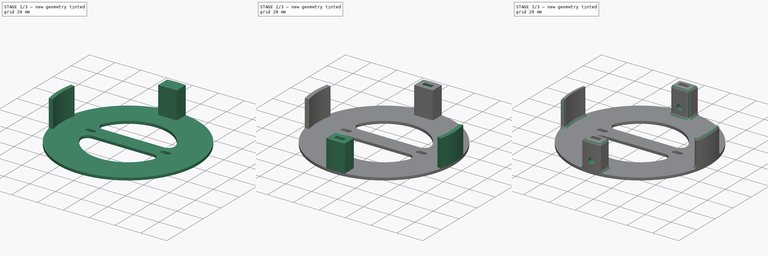
[diagram: build sequence overview — one tinted view per stage of 3, left to right]
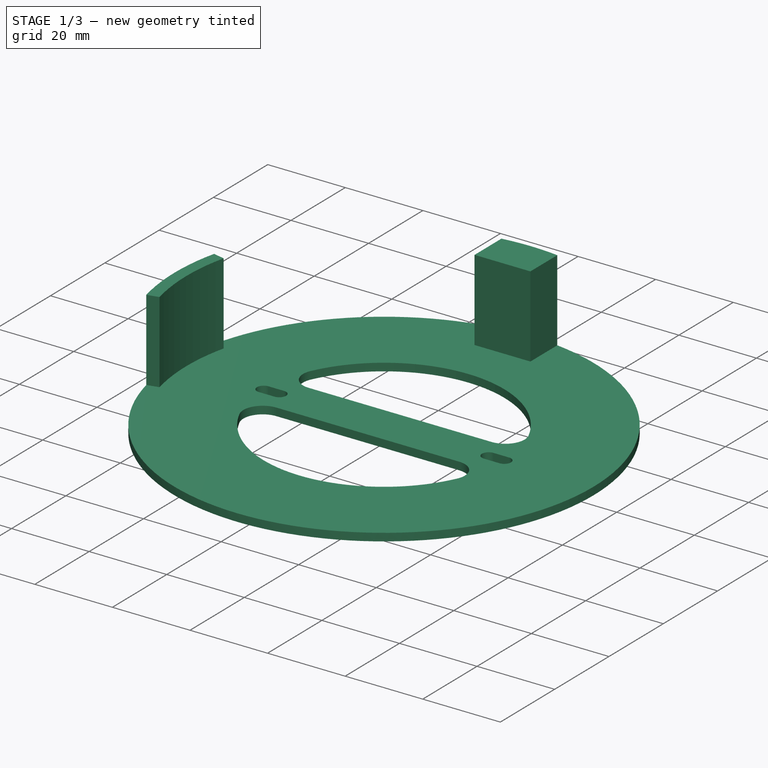
[diagram: stage 1 of 3 — iso view after this stage's code; geometry added in this stage tinted green]
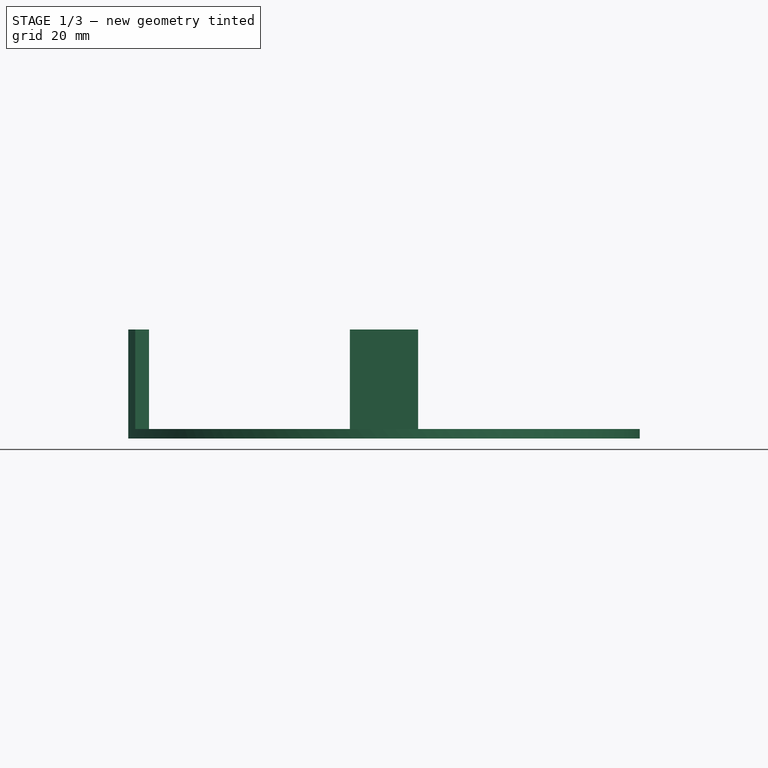
[diagram: stage 1 of 3 — front view after this stage's code; geometry added in this stage tinted green]
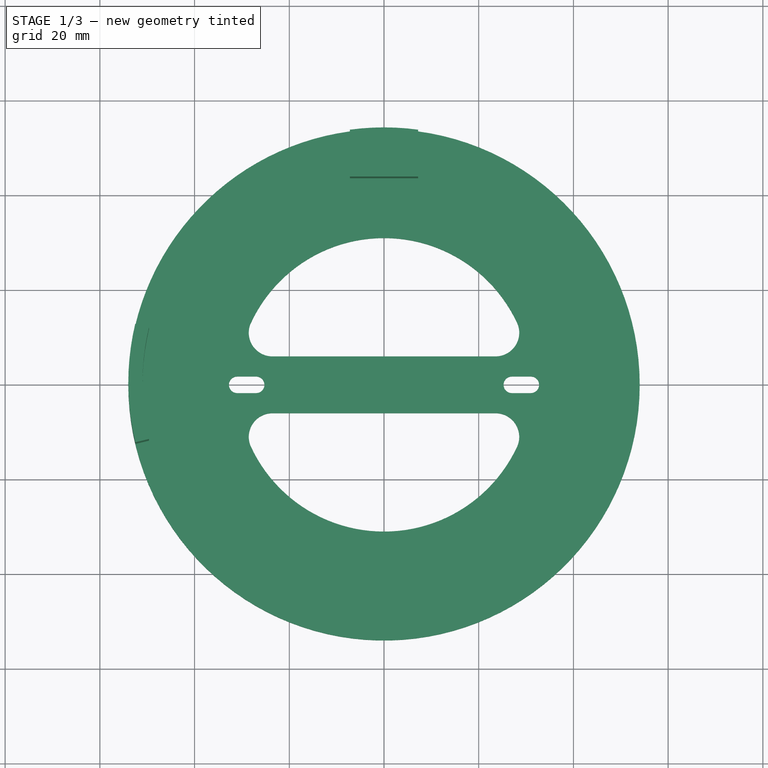
[diagram: stage 1 of 3 — top view after this stage's code; geometry added in this stage tinted green]
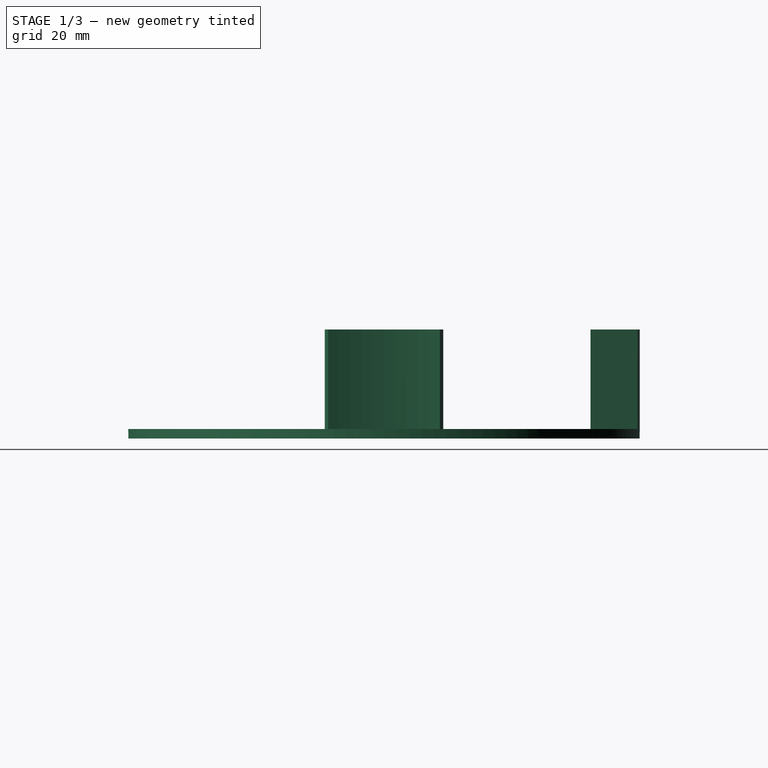
[diagram: stage 1 of 3 — right view after this stage's code; geometry added in this stage tinted green]
FCSTD DOCUMENT  (FreeCAD 0.18.3R)
Label: BathroomLampAdapter
License: All rights reserved
LicenseURL: http://en.wikipedia.org/wiki/All_rights_reserved
objects: Sketcher::SketchObject×5, PartDesign::Pad×2, PartDesign::PolarPattern×2, PartDesign::Pocket×2, Spreadsheet::Sheet×1, PartDesign::Fillet×1, PartDesign::Body×1, App::Part×1
note: 17 computed .brp shape members not serialized (recipe doc carries the construction recipe); baked Part::Feature solids carry a one-line shape summary decoded from their .brp

FEATURE [Spreadsheet::Sheet] Spreadsheet001  label="Screws"
  cells = B2=M3Radius; C2(M3Radius)==1.75mm; B3=M3HeadRadius; C3(M3HeadRadius)==2.9mm; B4=M3HeadHeight; C4(M3HeadHeight)==3mm; B5=M3WasherRadius; C5(M3WasherRadius)==3.6mm; B6=M3WasherHeight; C6(M3WasherHeight)==0.5mm; B7=M3NutRadius; C7(M3NutRadius)==3.3mm; B8=M3NutHeight; C8(M3NutHeight)==2.6mm; B9=M3NylocNutHeight; C9(M3NylocNutHeight)==4.1mm; B10=M3NutDuctWidth; C10(M3NutDuctWidth)==5.6mm; B11=M4Radius; C11(M4Radius)==2.2mm; B12=M4HeadRadius; C12(M4HeadRadius)==3.7mm; B13=M4HeadHeight; C13(M4HeadHeight)==4mm; B14=M4WasherRadius; C14(M4WasherRadius)==4.65mm; B15=M4NutRadius; C15(M4NutRadius)==4.1mm; B16=M4NutDuctWidth; C16(M4NutDuctWidth)==7.2mm; B17=M4NutHeight; C17(M4NutHeight)==3.3mm; B18=M5Radius; C18(M5Radius)==2.66mm; B19=M5HeadRadius; C19(M5HeadRadius)==4.5mm; B20=M5HeadHeight; C20(M5HeadHeight)==5mm; B21=M5NutRadius; C21(M5NutRadius)==4.75mm; B22=M5NutHeight; C22(M5NutHeight)==4mm; B24=M6Radius; C24(M6Radius)==3.15mm; B25=M6HeadRadius; C25(M6HeadRadius)==5.5mm; B32=
FEATURE [Sketcher::SketchObject] Sketch003  label="Template"
  MapMode = 5
  Support = -> [XY_Plane001]
  expr: Constraints[67] = Constraints.Ro - 3mm
  expr: Constraints[64] = Screws.M4NutDuctWidth * 2
  expr: Constraints[59] = Screws.M4NutHeight * 3
  expr: Constraints[58] = Screws.M4NutHeight
  expr: Constraints[57] = Screws.M4NutDuctWidth
  expr: Constraints[17] = Screws.M3Radius
  sketch-geometry (30):
    g0: ArcOfCircle CenterX=-27 CenterY=0 CenterZ=0 NormalX=0 NormalY=0 NormalZ=1 AngleXU=0 Radius=1.75 StartAngle=4.71239 EndAngle=7.85398
    g1: ArcOfCircle CenterX=-31 CenterY=0 CenterZ=0 NormalX=0 NormalY=0 NormalZ=1 AngleXU=0 Radius=1.75 StartAngle=1.5708 EndAngle=4.71239
    g2: LineSegment StartX=-27 StartY=1.75 StartZ=0 EndX=-31 EndY=1.75 EndZ=0
    g3: LineSegment StartX=-27 StartY=-1.75 StartZ=0 EndX=-31 EndY=-1.75 EndZ=0
    g4: ArcOfCircle CenterX=27 CenterY=0 CenterZ=0 NormalX=0 NormalY=0 NormalZ=1 AngleXU=0 Radius=1.75 StartAngle=1.5708 EndAngle=4.71239
    g5: ArcOfCircle CenterX=31 CenterY=-1e-16 CenterZ=0 NormalX=0 NormalY=0 NormalZ=1 AngleXU=0 Radius=1.75 StartAngle=4.71239 EndAngle=7.85398
    g6: LineSegment StartX=27 StartY=-1.75 StartZ=0 EndX=31 EndY=-1.75 EndZ=0
    g7: LineSegment StartX=27 StartY=1.75 StartZ=0 EndX=31 EndY=1.75 EndZ=0
    g8: GeomPoint X=-29 Y=0 Z=0
    g9: GeomPoint X=29 Y=0 Z=0
    g10: Circle CenterX=0 CenterY=0 CenterZ=0 NormalX=0 NormalY=0 NormalZ=1 AngleXU=0 Radius=54
    g11: ArcOfCircle CenterX=0 CenterY=0 CenterZ=0 NormalX=0 NormalY=0 NormalZ=1 AngleXU=0 Radius=31 StartAngle=0.436838 EndAngle=2.70475
    g12: ArcOfCircle CenterX=0 CenterY=0 CenterZ=0 NormalX=0 NormalY=0 NormalZ=1 AngleXU=0 Radius=31 StartAngle=3.57843 EndAngle=5.84635
    g13: LineSegment StartX=-23.5584 StartY=-6 StartZ=0 EndX=23.5584 EndY=-6 EndZ=0
    g14: LineSegment StartX=-23.5584 StartY=6 StartZ=0 EndX=23.5584 EndY=6 EndZ=0
    g15: ArcOfCircle CenterX=-23.5584 CenterY=11 CenterZ=0 NormalX=0 NormalY=0 NormalZ=1 AngleXU=0 Radius=5 StartAngle=2.70475 EndAngle=4.71239
    g16: ArcOfCircle CenterX=23.5584 CenterY=11 CenterZ=0 NormalX=0 NormalY=0 NormalZ=1 AngleXU=0 Radius=5 StartAngle=4.71239 EndAngle=6.72002
    g17: ArcOfCircle CenterX=-23.5584 CenterY=-11 CenterZ=0 NormalX=0 NormalY=0 NormalZ=1 AngleXU=0 Radius=5 StartAngle=1.5708 EndAngle=3.57843
    g18: ArcOfCircle CenterX=23.5584 CenterY=-11 CenterZ=0 NormalX=0 NormalY=0 NormalZ=1 AngleXU=0 Radius=5 StartAngle=5.84635 EndAngle=7.85398
    g19: LineSegment StartX=7.2 StartY=53.5178 StartZ=0 EndX=7.2 EndY=43.6178 EndZ=0
    g20: LineSegment StartX=7.2 StartY=43.6178 StartZ=0 EndX=-7.2 EndY=43.6178 EndZ=0
    g21: LineSegment StartX=-7.2 StartY=43.6178 StartZ=0 EndX=-7.2 EndY=53.5178 EndZ=0
    g22: LineSegment StartX=-3.6 StartY=50.2178 StartZ=0 EndX=3.6 EndY=50.2178 EndZ=0
    g23: LineSegment StartX=3.6 StartY=50.2178 StartZ=0 EndX=3.6 EndY=46.9178 EndZ=0
    g24: LineSegment StartX=3.6 StartY=46.9178 StartZ=0 EndX=-3.6 EndY=46.9178 EndZ=0
    g25: LineSegment StartX=-3.6 StartY=46.9178 StartZ=0 EndX=-3.6 EndY=50.2178 EndZ=0
    g26: LineSegment [constr] StartX=-3.6 StartY=46.9178 StartZ=0 EndX=-3.6 EndY=43.6178 EndZ=0
    g27: ArcOfCircle CenterX=0 CenterY=0 CenterZ=0 NormalX=0 NormalY=0 NormalZ=1 AngleXU=0 Radius=51 StartAngle=2.90799 EndAngle=3.37519
    g28: LineSegment StartX=-49.6148 StartY=11.8056 StartZ=0 EndX=-52.5333 EndY=12.5 EndZ=0
    g29: LineSegment StartX=-49.6148 StartY=-11.8056 StartZ=0 EndX=-52.5333 EndY=-12.5 EndZ=0
  constraints (76):
    c: Tangent(g0,g3) = 1.5708
    c: Tangent(g0,g2) = -1.5708
    c: Tangent(g2,g1) = -1.5708
    c: Tangent(g3,g1) = 1.5708
    c: Horizontal(g2)
    c: Equal(g0,g1)
    c: PointOnObject(g0,g-1)
    c: Tangent(g4,g7) = 1.5708
    c: Tangent(g4,g6) = -1.5708
    c: Tangent(g6,g5) = -1.5708
    c: Tangent(g7,g5) = 1.5708
    c: Horizontal(g6)
    c: Equal(g4,g5)
    c: Symmetric(g0,g1,g8)
    c: Symmetric(g5,g4,g9)
    c: Equal(g1,g5)
    c: Equal(g3,g6)
    c: Radius(g0) = 1.75
    c: DistanceX(g8,g9) = 58
    c: Symmetric(g8,g9,g-1)
    c: DistanceX(g3,g3) = 4
    c: Coincident(g10,g-1)
    c: Radius(g10) = 54  'Ro'
    c: Coincident(g11,g10)
    c: Coincident(g12,g10)
    c: Horizontal(g13)
    c: Equal(g11,g12)
    c: Horizontal(g14)
    c: PointOnObject(g1,g11)
    c: Tangent(g11,g16) = -1.5708
    c: Tangent(g14,g16) = -1.5708
    c: Tangent(g14,g15) = -1.5708
    c: Tangent(g11,g15) = -1.5708
    c: Equal(g15,g16)
    c: Equal(g13,g14)
    c: Equal(g17,g18)
    c: Equal(g18,g16)
    c: Tangent(g13,g17) = 1.5708
    c: Tangent(g12,g17) = -1.5708
    c: Tangent(g13,g18) = 1.5708
    c: Tangent(g12,g18) = -1.5708
    c: DistanceY(g13,g14) = 12
    c: Radius(g15) = 5
    c: Coincident(g19,g20)
    c: Coincident(g20,g21)
    c: Horizontal(g20)
    c: Vertical(g19)
    c: Vertical(g21)
    c: Symmetric(g19,g21,g-2)
    c: Coincident(g22,g23)
    c: Coincident(g23,g24)
    c: Coincident(g24,g25)
    c: Coincident(g25,g22)
    c: Horizontal(g24)
    c: Vertical(g23)
    c: Vertical(g25)
    c: Symmetric(g22,g22,g-2)
    c: DistanceX(g22,g22) = 7.2
    c: DistanceY(g23,g23) = 3.3
    c: DistanceY(g21,g21) = 9.9
    c: Coincident(g26,g24)
    c: PointOnObject(g26,g20)
    c: Vertical(g26)
    c: Equal(g26,g25)
    c: DistanceX(g20,g20) = 14.4
    c: PointOnObject(g21,g10)
    c: Coincident(g27,g10)
    c: Radius(g27) = 51
    c: Coincident(g28,g27)
    c: PointOnObject(g28,g10)
    c: Coincident(g29,g27)
    c: PointOnObject(g29,g10)
    c: PointOnObject(g10,g29)
    c: PointOnObject(g10,g28)
    c: Symmetric(g27,g27,g-1)
    c: DistanceY(g29,g28) = 25
FEATURE [Sketcher::SketchObject] Sketch
  ExternalGeometry = -> [Sketch003]
  MapMode = 5
  Support = -> [XY_Plane001]
  sketch-geometry (17):
    g0: Circle CenterX=1.245e-13 CenterY=0 CenterZ=0 NormalX=0 NormalY=0 NormalZ=1 AngleXU=0 Radius=54
    g1: ArcOfCircle CenterX=1.245e-13 CenterY=0 CenterZ=0 NormalX=0 NormalY=0 NormalZ=1 AngleXU=0 Radius=31 StartAngle=0.436838 EndAngle=2.70475
    g2: ArcOfCircle CenterX=1.245e-13 CenterY=0 CenterZ=0 NormalX=0 NormalY=0 NormalZ=1 AngleXU=0 Radius=31 StartAngle=3.57843 EndAngle=5.84635
    g3: ArcOfCircle CenterX=-23.5584 CenterY=11 CenterZ=0 NormalX=0 NormalY=0 NormalZ=1 AngleXU=0 Radius=5 StartAngle=2.70475 EndAngle=4.71239
    g4: ArcOfCircle CenterX=23.5584 CenterY=11 CenterZ=0 NormalX=0 NormalY=0 NormalZ=1 AngleXU=0 Radius=5 StartAngle=4.71239 EndAngle=6.72002
    g5: ArcOfCircle CenterX=23.5584 CenterY=-11 CenterZ=0 NormalX=0 NormalY=0 NormalZ=1 AngleXU=0 Radius=5 StartAngle=5.84635 EndAngle=7.85398
    g6: ArcOfCircle CenterX=-23.5584 CenterY=-11 CenterZ=0 NormalX=0 NormalY=0 NormalZ=1 AngleXU=0 Radius=5 StartAngle=1.5708 EndAngle=3.57843
    g7: ArcOfCircle CenterX=-27 CenterY=0 CenterZ=0 NormalX=0 NormalY=0 NormalZ=1 AngleXU=0 Radius=1.75 StartAngle=4.71239 EndAngle=7.85398
    g8: ArcOfCircle CenterX=-31 CenterY=2e-16 CenterZ=0 NormalX=0 NormalY=0 NormalZ=1 AngleXU=0 Radius=1.75 StartAngle=1.5708 EndAngle=4.71239
    g9: ArcOfCircle CenterX=31 CenterY=0 CenterZ=0 NormalX=0 NormalY=0 NormalZ=1 AngleXU=0 Radius=1.75 StartAngle=4.71239 EndAngle=7.85398
    g10: ArcOfCircle CenterX=27 CenterY=-1e-16 CenterZ=0 NormalX=0 NormalY=0 NormalZ=1 AngleXU=0 Radius=1.75 StartAngle=1.5708 EndAngle=4.71239
    g11: LineSegment StartX=-23.5584 StartY=6 StartZ=0 EndX=23.5584 EndY=6 EndZ=0
    g12: LineSegment StartX=-23.5584 StartY=-6 StartZ=0 EndX=23.5584 EndY=-6 EndZ=0
    g13: LineSegment StartX=27 StartY=-1.75 StartZ=0 EndX=31 EndY=-1.75 EndZ=0
    g14: LineSegment StartX=27 StartY=1.75 StartZ=0 EndX=31 EndY=1.75 EndZ=0
    g15: LineSegment StartX=-31 StartY=1.75 StartZ=0 EndX=-27 EndY=1.75 EndZ=0
    g16: LineSegment StartX=-31 StartY=-1.75 StartZ=0 EndX=-27 EndY=-1.75 EndZ=0
  constraints (44):
    c: Coincident(g0,g-1)
    c: Equal(g0,g-3)
    c: Coincident(g1,g0)
    c: Coincident(g1,g-5)
    c: Coincident(g1,g-6)
    c: Coincident(g2,g0)
    c: Coincident(g2,g-9)
    c: Coincident(g2,g-8)
    c: Coincident(g3,g-5)
    c: Coincident(g3,g1)
    c: Coincident(g3,g-5)
    c: Coincident(g4,g-6)
    c: Coincident(g4,g1)
    c: Coincident(g4,g-6)
    c: Coincident(g5,g-7)
    c: Coincident(g5,g-7)
    c: Coincident(g5,g2)
    c: Coincident(g6,g-9)
    c: Coincident(g6,g-9)
    c: Coincident(g6,g2)
    c: Coincident(g7,g-11)
    c: Coincident(g7,g-11)
    c: Coincident(g7,g-11)
    c: Coincident(g8,g-10)
    c: Coincident(g8,g-10)
    c: Coincident(g8,g-10)
    c: Coincident(g9,g-12)
    c: Coincident(g9,g-12)
    c: Coincident(g9,g-12)
    c: Coincident(g10,g-13)
    c: Coincident(g10,g-13)
    c: Coincident(g10,g-13)
    c: Coincident(g11,g3)
    c: Coincident(g11,g4)
    c: Coincident(g12,g6)
    c: Coincident(g12,g5)
    c: Coincident(g13,g10)
    c: Coincident(g13,g9)
    c: Coincident(g14,g10)
    c: Coincident(g14,g9)
    c: Coincident(g15,g8)
    c: Coincident(g15,g7)
    c: Coincident(g16,g8)
    c: Coincident(g16,g7)
FEATURE [PartDesign::Pad] Pad
  Length = 2
  Length2 = 100
  Profile = -> Sketch
  Type = 0
FEATURE [Sketcher::SketchObject] Sketch004
  AttachmentOffset = pos=(0,0,2) rot=(0,0,1;0rad)
  ExternalGeometry = -> [Sketch003]
  MapMode = 5
  Placement = pos=(0,0,2) rot=(0,0,1;0rad)
  Support = -> [XY_Plane001]
  expr: AttachmentOffset.Base.z = Sketch.Placement.Base.z + Pad.Length
  sketch-geometry (8):
    g0: LineSegment StartX=-7.2 StartY=53.5178 StartZ=0 EndX=-7.2 EndY=43.6178 EndZ=0
    g1: LineSegment StartX=-7.2 StartY=43.6178 StartZ=0 EndX=7.2 EndY=43.6178 EndZ=0
    g2: LineSegment StartX=7.2 StartY=43.6178 StartZ=0 EndX=7.2 EndY=53.5178 EndZ=0
    g3: LineSegment StartX=-52.5333 StartY=12.5 StartZ=0 EndX=-49.6148 EndY=11.8056 EndZ=0
    g4: LineSegment StartX=-52.5333 StartY=-12.5 StartZ=0 EndX=-49.6148 EndY=-11.8056 EndZ=0
    g5: ArcOfCircle CenterX=0 CenterY=5.9e-15 CenterZ=0 NormalX=0 NormalY=0 NormalZ=1 AngleXU=0 Radius=54 StartAngle=1.43706 EndAngle=1.70453
    g6: ArcOfCircle CenterX=0 CenterY=5.9e-15 CenterZ=0 NormalX=0 NormalY=0 NormalZ=1 AngleXU=0 Radius=54 StartAngle=2.90799 EndAngle=3.37519
    g7: ArcOfCircle CenterX=0 CenterY=5.9e-15 CenterZ=0 NormalX=0 NormalY=0 NormalZ=1 AngleXU=0 Radius=51 StartAngle=2.90799 EndAngle=3.37519
  constraints (19):
    c: Coincident(g-3,g0)
    c: Coincident(g0,g-3)
    c: Coincident(g0,g1)
    c: Coincident(g1,g-4)
    c: Coincident(g1,g2)
    c: Coincident(g2,g-4)
    c: Coincident(g3,g-5)
    c: Coincident(g3,g-5)
    c: Coincident(g4,g-6)
    c: Coincident(g4,g-6)
    c: Coincident(g5,g-1)
    c: Coincident(g5,g0)
    c: Coincident(g5,g2)
    c: Coincident(g6,g5)
    c: Coincident(g6,g3)
    c: Coincident(g6,g4)
    c: Coincident(g7,g5)
    c: Coincident(g7,g3)
    c: Coincident(g7,g4)
FEATURE [PartDesign::Pad] Pad001
  BaseFeature = -> Pad
  Length = 21
  Length2 = 100
  Profile = -> Sketch004
  Type = 0
  expr: Length = 23mm - Pad.Length
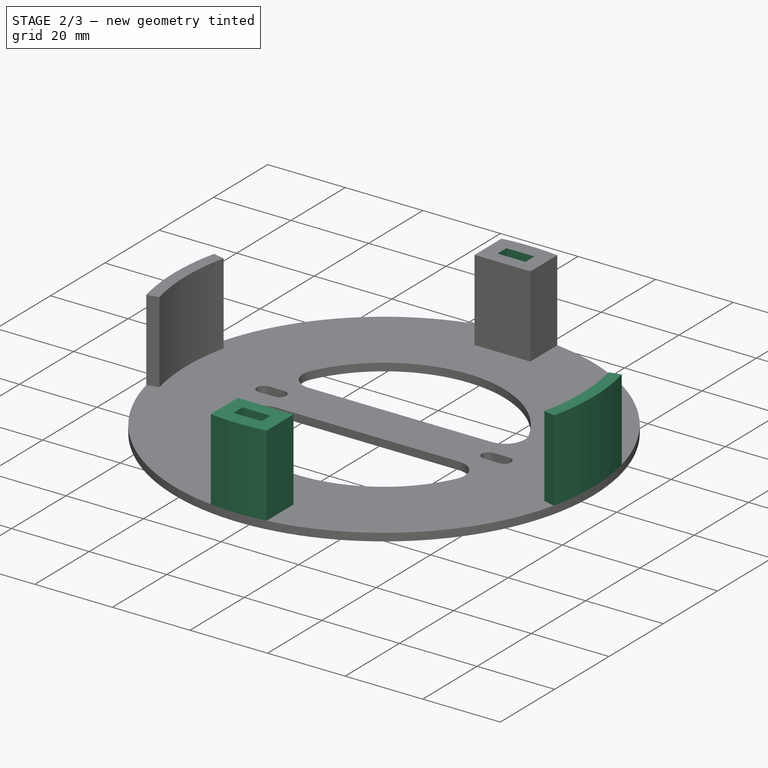
[diagram: stage 2 of 3 — iso view after this stage's code; geometry added in this stage tinted green]
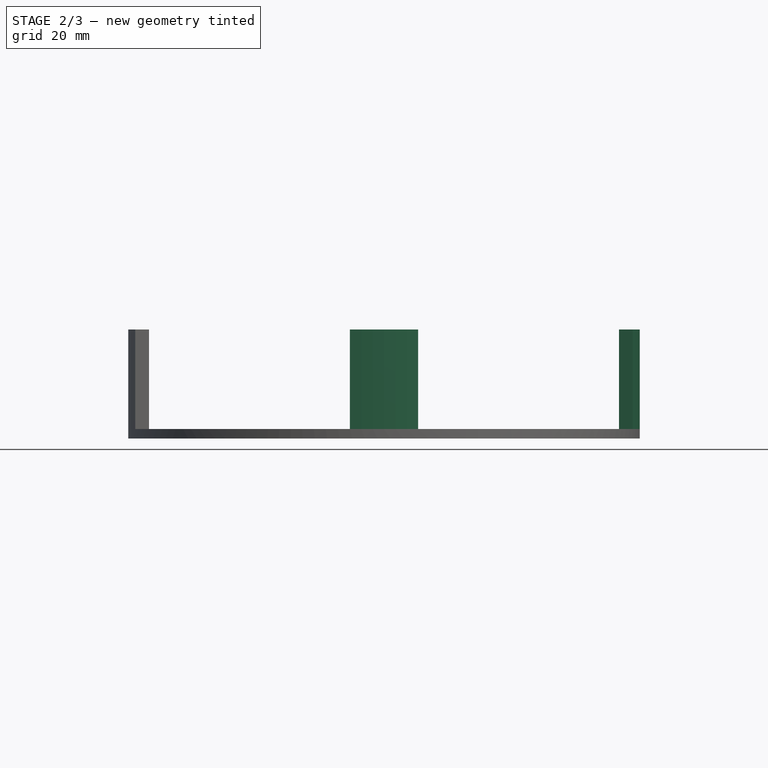
[diagram: stage 2 of 3 — front view after this stage's code; geometry added in this stage tinted green]
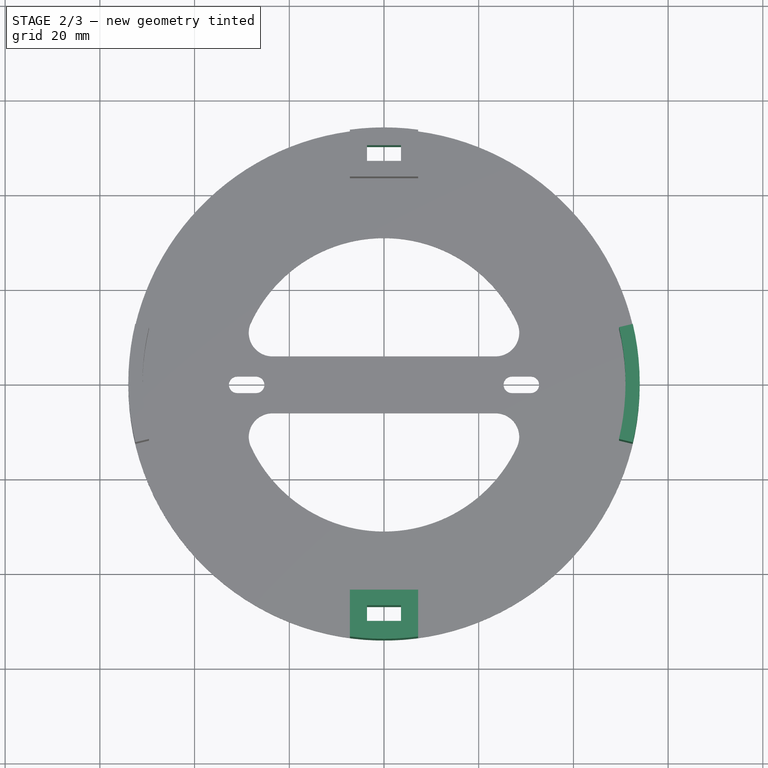
[diagram: stage 2 of 3 — top view after this stage's code; geometry added in this stage tinted green]
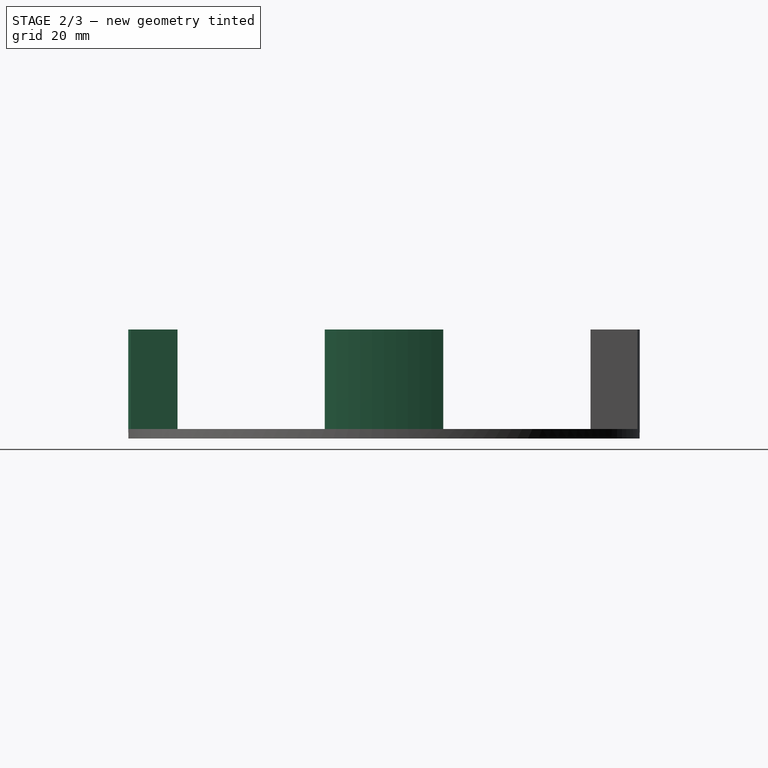
[diagram: stage 2 of 3 — right view after this stage's code; geometry added in this stage tinted green]
FEATURE [PartDesign::PolarPattern] PolarPattern
  Angle = 360
  Axis = -> Sketch004 [N_Axis]
  BaseFeature = -> Pad001
  Occurrences = 2
  Originals = -> [Pad001]
FEATURE [Sketcher::SketchObject] Sketch005
  AttachmentOffset = pos=(0,0,23) rot=(0,0,1;0rad)
  ExternalGeometry = -> [Sketch003]
  MapMode = 5
  Placement = pos=(0,0,23) rot=(0,0,1;0rad)
  Support = -> [XY_Plane001]
  expr: AttachmentOffset.Base.z = Sketch004.Placement.Base.z + Pad001.Length
  sketch-geometry (4):
    g0: LineSegment StartX=-3.6 StartY=50.2178 StartZ=0 EndX=3.6 EndY=50.2178 EndZ=0
    g1: LineSegment StartX=3.6 StartY=50.2178 StartZ=0 EndX=3.6 EndY=46.9178 EndZ=0
    g2: LineSegment StartX=3.6 StartY=46.9178 StartZ=0 EndX=-3.6 EndY=46.9178 EndZ=0
    g3: LineSegment StartX=-3.6 StartY=46.9178 StartZ=0 EndX=-3.6 EndY=50.2178 EndZ=0
  constraints (10):
    c: Coincident(g0,g1)
    c: Coincident(g1,g2)
    c: Coincident(g2,g3)
    c: Coincident(g3,g0)
    c: Horizontal(g0)
    c: Horizontal(g2)
    c: Vertical(g1)
    c: Vertical(g3)
    c: Coincident(g0,g-3)
    c: Coincident(g1,g-4)
FEATURE [PartDesign::Pocket] Pocket
  BaseFeature = -> PolarPattern
  Length = 5
  Length2 = 100
  Profile = -> Sketch005
  Type = 1
FEATURE [PartDesign::PolarPattern] PolarPattern001
  Angle = 360
  Axis = -> Sketch005 [N_Axis]
  BaseFeature = -> Pocket
  Occurrences = 2
  Originals = -> [Pocket]
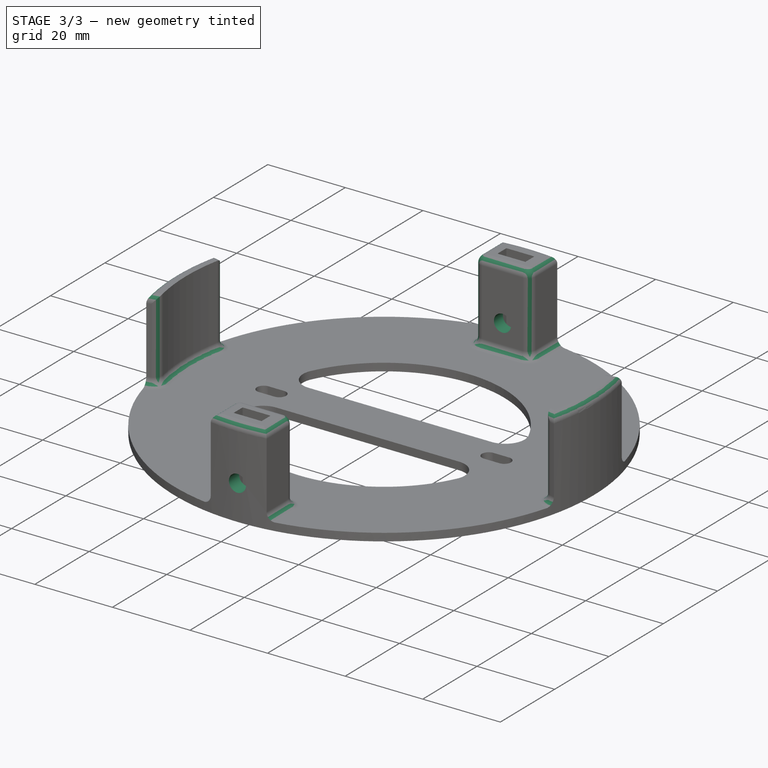
[diagram: stage 3 of 3 — iso view after this stage's code; geometry added in this stage tinted green]
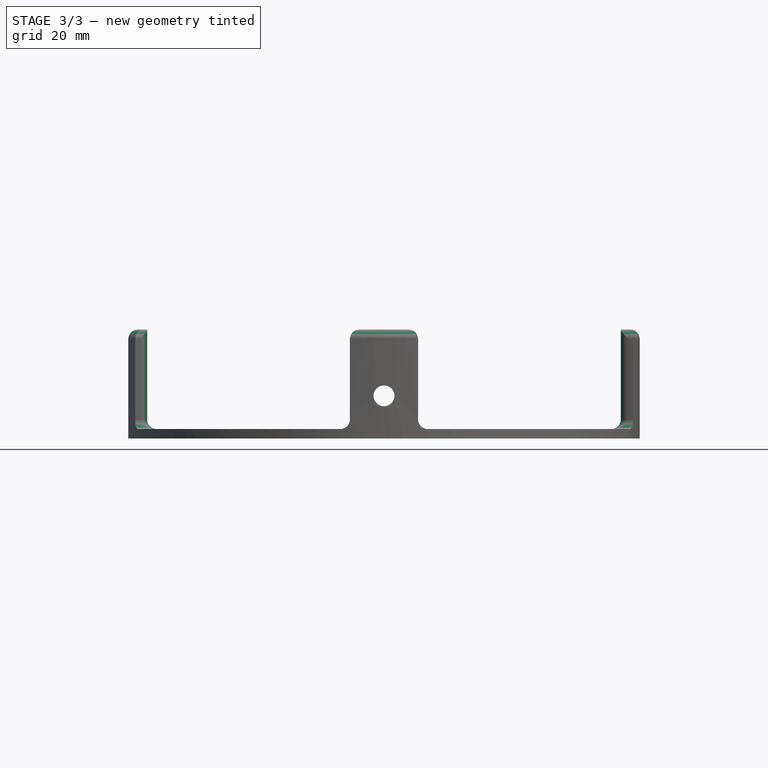
[diagram: stage 3 of 3 — front view after this stage's code; geometry added in this stage tinted green]
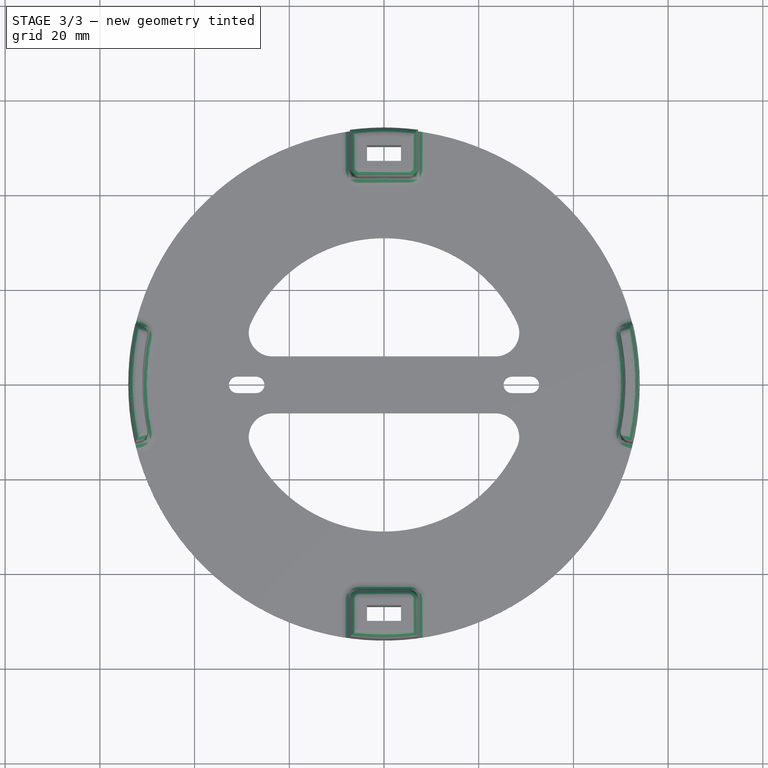
[diagram: stage 3 of 3 — top view after this stage's code; geometry added in this stage tinted green]
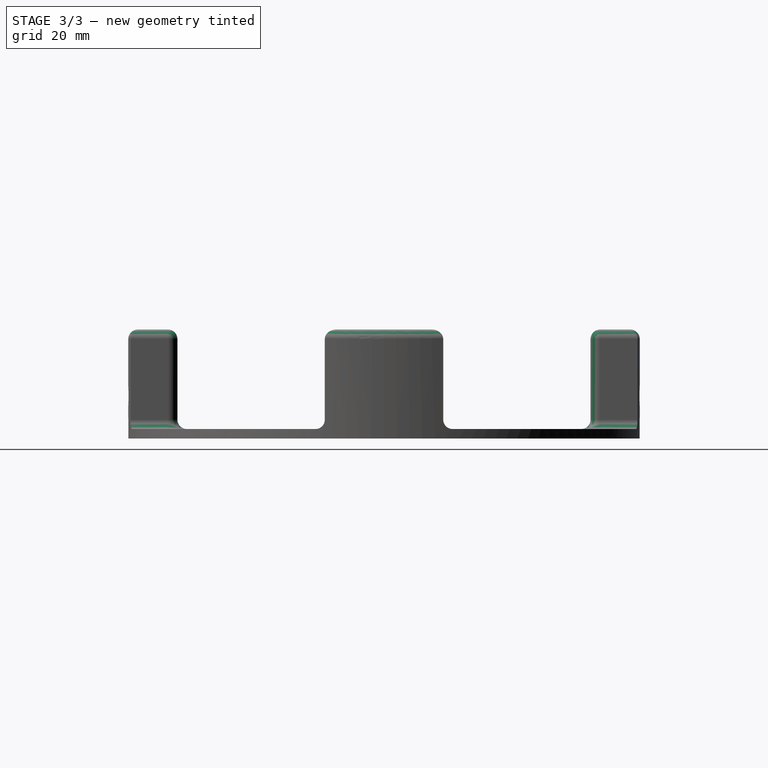
[diagram: stage 3 of 3 — right view after this stage's code; geometry added in this stage tinted green]
FEATURE [Sketcher::SketchObject] Sketch006
  MapMode = 5
  Placement = pos=(0,0,0) rot=(1,0,0;1.5708rad)
  Support = -> [XZ_Plane001]
  expr: Constraints[2] = Screws.M4Radius
  sketch-geometry (1):
    g0: Circle CenterX=0 CenterY=9 CenterZ=0 NormalX=0 NormalY=0 NormalZ=1 AngleXU=0 Radius=2.2
  constraints (3):
    c: PointOnObject(g0,g-2)
    c: DistanceY(g-1,g0) = 9
    c: Radius(g0) = 2.2
FEATURE [PartDesign::Pocket] Pocket001
  BaseFeature = -> PolarPattern001
  Length = 5
  Length2 = 100
  Midplane = true
  Profile = -> Sketch006
  Refine = true
  Type = 1
FEATURE [PartDesign::Fillet] Fillet
  Base = -> Pocket001 [Edge33,Edge34,Edge112,Edge35,Edge77,Edge80,Edge83,Edge78,Edge79,Edge87,Edge91,Edge86,Edge106,Edge42,Edge43,Edge88,Edge85,Edge41,Edge66,Edge111,Edge38,Edge37,Edge39,Edge64,Edge61,Edge65,Edge62,Edge75,Edge71,Edge72,Edge31,Edge29,Edge30,Edge70]
  BaseFeature = -> Pocket001
  Radius = 2
FEATURE [PartDesign::Body] Body
  Group = -> [Sketch003,Sketch,Pad,Sketch004,Pad001,PolarPattern,Sketch005,Pocket,PolarPattern001,Sketch006,Pocket001,Fillet]
  Origin = -> Origin001
  Tip = -> Fillet
FEATURE [App::Part] Part
  Group = -> [Body]
  Origin = -> Origin
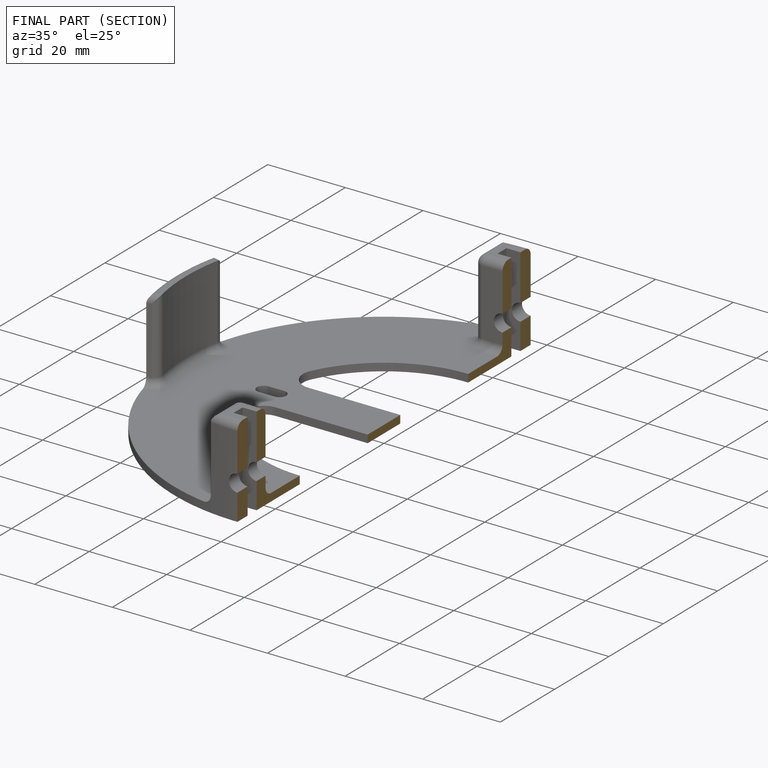
[diagram: finished part — half-section view (interior)]
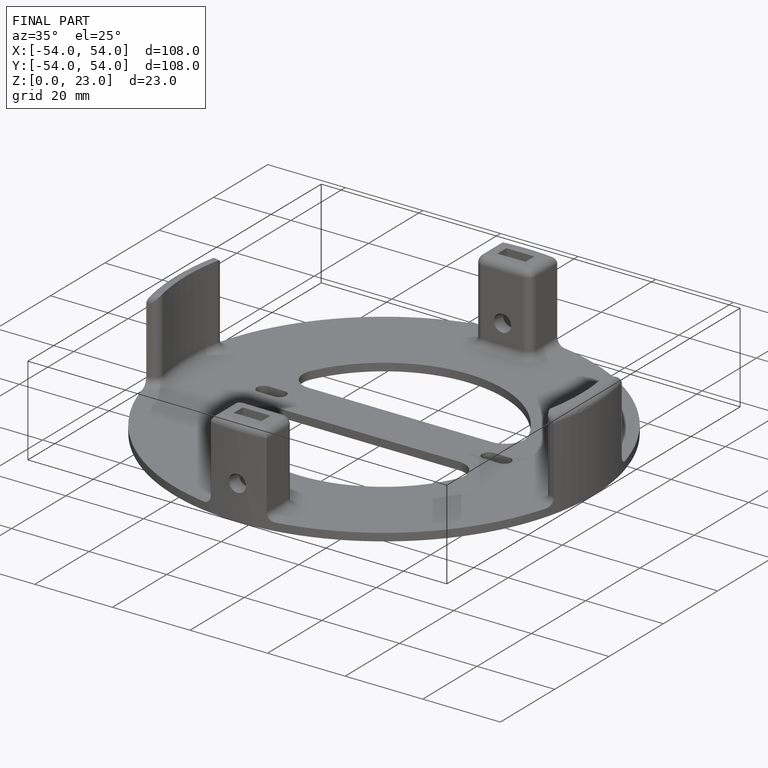
[diagram: finished part — iso view with bounding-box wireframe]
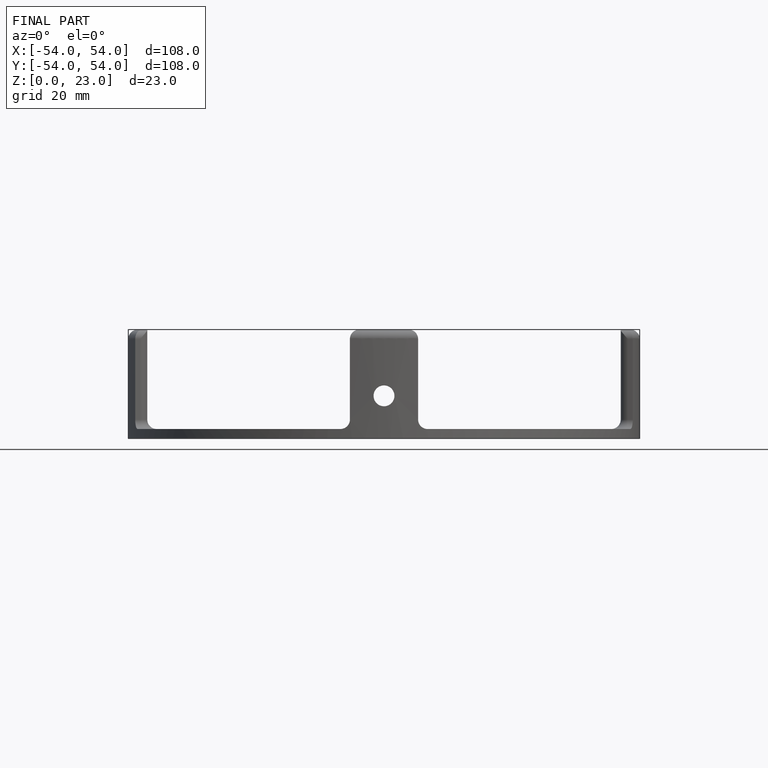
[diagram: finished part — front view with bounding-box wireframe]
